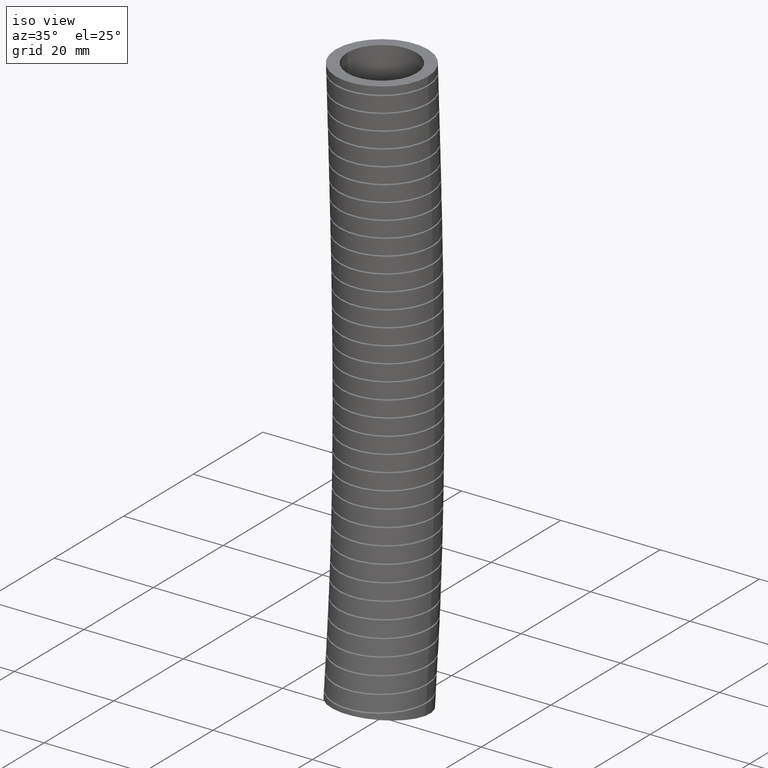
[diagram: clean part render]
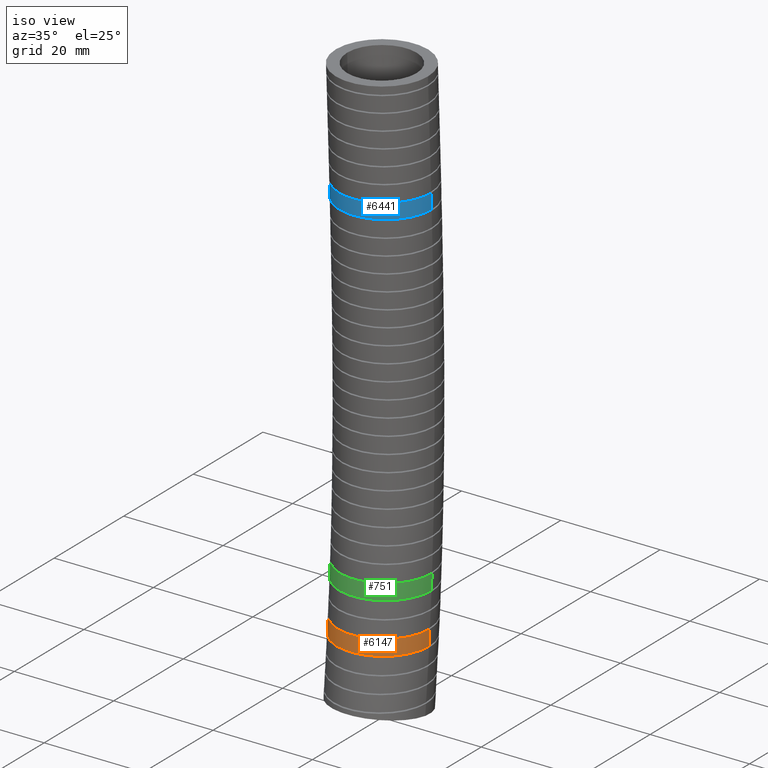
[diagram: same view with three faces highlighted in distinct colors, each labeled with its STEP entity id]
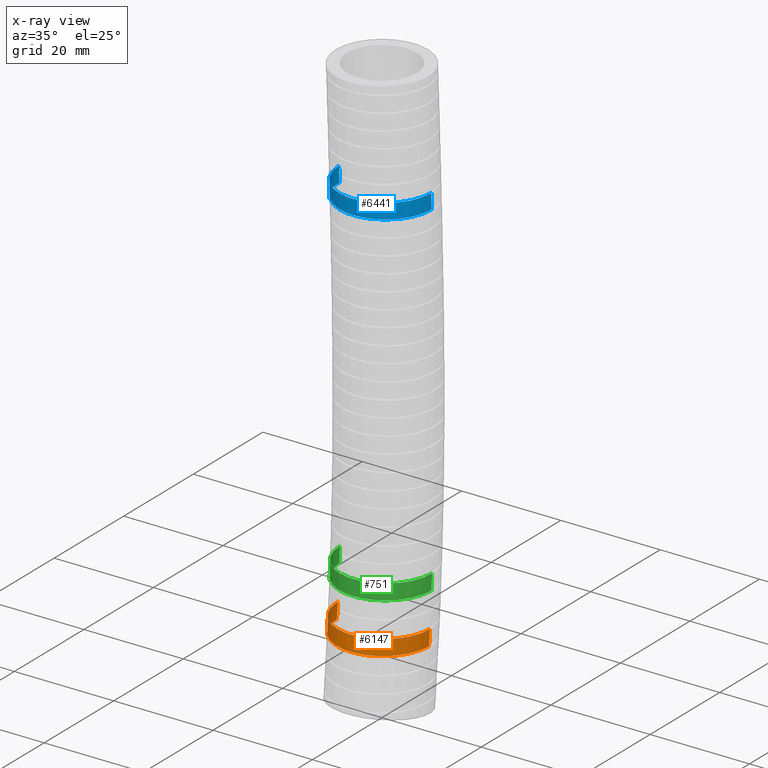
[diagram: x-ray of the same camera — body ghosted, the three highlighted faces saturated]
A machine part, iso view with three faces highlighted in distinct colors.
The next image is the same camera in x-ray (body ghosted, the three faces saturated) — at least one of them is partly hidden behind the body in this view.
Their STEP definitions:

[orange] entity #6147 — the highlighted face is a freeform B-spline surface patch.
#6115 = EDGE_LOOP ( 'NONE', ( #6137, #6139, #6136, #6132 ) ) ;
#6131 = EDGE_CURVE ( 'NONE', #6144, #6142, #7978, .T. ) ;
#6132 = ORIENTED_EDGE ( 'NONE', *, *, #6133, .F. ) ;
#6133 = EDGE_CURVE ( 'NONE', #6140, #6135, #8040, .T. ) ;
#6135 = VERTEX_POINT ( 'NONE', #8039 ) ;
#6136 = ORIENTED_EDGE ( 'NONE', *, *, #6138, .T. ) ;
#6137 = ORIENTED_EDGE ( 'NONE', *, *, #6143, .T. ) ;
#6138 = EDGE_CURVE ( 'NONE', #6142, #6135, #8032, .T. ) ;
#6139 = ORIENTED_EDGE ( 'NONE', *, *, #6131, .T. ) ;
#6140 = VERTEX_POINT ( 'NONE', #8033 ) ;
#6142 = VERTEX_POINT ( 'NONE', #8051 ) ;
#6143 = EDGE_CURVE ( 'NONE', #6140, #6144, #8129, .T. ) ;
#6144 = VERTEX_POINT ( 'NONE', #8128 ) ;
#6147 = ADVANCED_FACE ( 'NONE', ( #8151 ), #8185, .T. ) ;
#7923 = CARTESIAN_POINT ( 'NONE',  ( -0.3649999999999998800, 0.7763672281549830500, -3.781913183025811700 ) ) ;
#7925 = CARTESIAN_POINT ( 'NONE',  ( -0.3649999999999999400, 0.8301834959050966600, -2.210314633867584100 ) ) ;
#7926 = CARTESIAN_POINT ( 'NONE',  ( -0.3649999999999999400, 0.7690999251777161900, -0.8626484434652025300 ) ) ;
#7978 = B_SPLINE_CURVE_WITH_KNOTS ( 'NONE', 3,
 ( #8045, #8044, #8043, #8042, #8041 ),
 .UNSPECIFIED., .F., .F.,
 ( 4, 1, 4 ),
 ( 0.8677262134614567300, 0.8748558840421495300, 0.8939758704220260900 ),
 .UNSPECIFIED. ) ;
#8015 = CARTESIAN_POINT ( 'NONE',  ( -0.1617408732175062400, -0.3156233113611828200, -4.087119373197302800 ) ) ;
#8016 = CARTESIAN_POINT ( 'NONE',  ( -0.1831871242756609700, -0.3041237905556405900, -4.087119373197302800 ) ) ;
#8017 = CARTESIAN_POINT ( 'NONE',  ( -0.2228213214858662200, -0.2775409316055321200, -4.087119373197302800 ) ) ;
#8018 = CARTESIAN_POINT ( 'NONE',  ( -0.2412027265038865200, -0.2624216085068166200, -4.087119373197301900 ) ) ;
#8019 = CARTESIAN_POINT ( 'NONE',  ( -0.2665947652469278200, -0.2369670080412288600, -4.087119373197302800 ) ) ;
#8020 = CARTESIAN_POINT ( 'NONE',  ( -0.2747198171865297100, -0.2279751230850201900, -4.087119373197301000 ) ) ;
#8021 = CARTESIAN_POINT ( 'NONE',  ( -0.2898893809470717300, -0.2094254825065335900, -4.087119373197301000 ) ) ;
#8022 = CARTESIAN_POINT ( 'NONE',  ( -0.2969751636502768700, -0.1998329062391065200, -4.087119373197304600 ) ) ;
#8023 = CARTESIAN_POINT ( 'NONE',  ( -0.3167667045823543400, -0.1701217711008359800, -4.087119373197302800 ) ) ;
#8024 = CARTESIAN_POINT ( 'NONE',  ( -0.3280402213300371800, -0.1490324992681531500, -4.087119373197301000 ) ) ;
#8025 = CARTESIAN_POINT ( 'NONE',  ( -0.3464518926208468000, -0.1044613540471608100, -4.087119373197301000 ) ) ;
#8026 = CARTESIAN_POINT ( 'NONE',  ( -0.3533309524797101900, -0.08163236126938180900, -4.087119373197300100 ) ) ;
#8027 = CARTESIAN_POINT ( 'NONE',  ( -0.3602916336646771500, -0.04660463012052671500, -4.087119373197301000 ) ) ;
#8028 = CARTESIAN_POINT ( 'NONE',  ( -0.3620480852095620500, -0.03479704955800518700, -4.087119373197300100 ) ) ;
#8029 = CARTESIAN_POINT ( 'NONE',  ( -0.3644060016865112700, -0.01091214047444344700, -4.087119373197301900 ) ) ;
#8030 = CARTESIAN_POINT ( 'NONE',  ( -0.3649999999999999900, 0.001184282769159964300, -4.087119373197301000 ) ) ;
#8031 = CARTESIAN_POINT ( 'NONE',  ( -0.3650000000000000500, 0.01315168128347887900, -4.087119373197301000 ) ) ;
#8032 = B_SPLINE_CURVE_WITH_KNOTS ( 'NONE', 3,
 ( #8031, #8030, #8029, #8028, #8027, #8026, #8025, #8024, #8023, #8022, #8021, #8020, #8019, #8018, #8017, #8016, #8015, #8082, #8081, #8080, #8079, #8078, #8077, #8076, #8075, #8074, #8073, #8072, #8071, #8070, #8069, #8068, #8067, #8066, #8065, #8064, #8063, #8062, #8061, #8060, #8059, #8058, #8057, #8056, #8055, #8054, #8053 ),
 .UNSPECIFIED., .F., .F.,
 ( 4, 2, 2, 2, 2, 2, 2, 2, 2, 2, 2, 1, 2, 2, 2, 2, 2, 2, 2, 2, 2, 2, 2, 4 ),
 ( 0.02932350999176520900, 0.03023998982624896700, 0.03115646966073272100, 0.03298942932970023300, 0.03482238899866774200, 0.03573886883315149900, 0.03665534866763525700, 0.03848830833660276500, 0.04032126800557027400, 0.04215422767453778900, 0.04307070750902154000, 0.04398718734350529100, 0.04490366717798904800, 0.04582014701247280600, 0.04765310668144030800, 0.04856958651592406500, 0.04948606635040781600, 0.05131902601937532400, 0.05223550585385908200, 0.05315198568834284000, 0.05498494535731035500, 0.05681790502627786400, 0.05773438486076162800, 0.05865086469524537900 ),
 .UNSPECIFIED. ) ;
#8033 = CARTESIAN_POINT ( 'NONE',  ( 0.3649999999999999900, 0.02243958337531989900, -3.967509262061444300 ) ) ;
#8034 = CARTESIAN_POINT ( 'NONE',  ( 0.3649999999999999900, 0.01315168131459247500, -4.087119373005252000 ) ) ;
#8035 = CARTESIAN_POINT ( 'NONE',  ( 0.3649999999999999900, 0.01550379923908595100, -4.058082443948714000 ) ) ;
#8036 = CARTESIAN_POINT ( 'NONE',  ( 0.3649999999999999900, 0.01864319593787870300, -4.018214199344331700 ) ) ;
#8037 = CARTESIAN_POINT ( 'NONE',  ( 0.3649999999999999900, 0.02163706634788196300, -3.978339948709972900 ) ) ;
#8038 = CARTESIAN_POINT ( 'NONE',  ( 0.3649999999999999900, 0.02243958337531989900, -3.967509262061444300 ) ) ;
#8039 = CARTESIAN_POINT ( 'NONE',  ( 0.3649999999999999900, 0.01315168131459247500, -4.087119373005252000 ) ) ;
#8040 = B_SPLINE_CURVE_WITH_KNOTS ( 'NONE', 3,
 ( #8038, #8037, #8036, #8035, #8034 ),
 .UNSPECIFIED., .F., .F.,
 ( 4, 1, 4 ),
 ( 0.8677262134190943900, 0.8748558840421495300, 0.8939758703795985800 ),
 .UNSPECIFIED. ) ;
#8041 = CARTESIAN_POINT ( 'NONE',  ( -0.3650000000000000500, 0.01315168128347887900, -4.087119373197301000 ) ) ;
#8042 = CARTESIAN_POINT ( 'NONE',  ( -0.3649999999999999900, 0.01550379922893752200, -4.058082444077592200 ) ) ;
#8043 = CARTESIAN_POINT ( 'NONE',  ( -0.3649999999999999900, 0.01864319592797328600, -4.018214199473121100 ) ) ;
#8044 = CARTESIAN_POINT ( 'NONE',  ( -0.3649999999999999900, 0.02163706633821883100, -3.978339948838672600 ) ) ;
#8045 = CARTESIAN_POINT ( 'NONE',  ( -0.3649999999999999900, 0.02243958334686557000, -3.967509262253454200 ) ) ;
#8051 = CARTESIAN_POINT ( 'NONE',  ( -0.3650000000000000500, 0.01315168128347887900, -4.087119373197301000 ) ) ;
#8053 = CARTESIAN_POINT ( 'NONE',  ( 0.3649999999999999900, 0.01315168131459247500, -4.087119373005252000 ) ) ;
#8054 = CARTESIAN_POINT ( 'NONE',  ( 0.3649999999999999900, 0.001082752167968604500, -4.087119373005252000 ) ) ;
#8055 = CARTESIAN_POINT ( 'NONE',  ( 0.3643998008095759000, -0.01099425686668248900, -4.087119373197296600 ) ) ;
#8056 = CARTESIAN_POINT ( 'NONE',  ( 0.3620428462776482700, -0.03483072062553978200, -4.087119373197296600 ) ) ;
#8057 = CARTESIAN_POINT ( 'NONE',  ( 0.3602882235100769400, -0.04662439098535629800, -4.087119373197303700 ) ) ;
#8058 = CARTESIAN_POINT ( 'NONE',  ( 0.3533286401720897600, -0.08163879182306250900, -4.087119373197302800 ) ) ;
#8059 = CARTESIAN_POINT ( 'NONE',  ( 0.3464138624654762300, -0.1045704718090343800, -4.087119373197302800 ) ) ;
#8060 = CARTESIAN_POINT ( 'NONE',  ( 0.3280025052856532200, -0.1491066782820089600, -4.087119373197302800 ) ) ;
#8061 = CARTESIAN_POINT ( 'NONE',  ( 0.3167635655355515200, -0.1701291182734404600, -4.087119373197299200 ) ) ;
#8062 = CARTESIAN_POINT ( 'NONE',  ( 0.2969580611764466900, -0.1998572612607742700, -4.087119373197298300 ) ) ;
#8063 = CARTESIAN_POINT ( 'NONE',  ( 0.2898614562622361400, -0.2094635247942865100, -4.087119373197299200 ) ) ;
#8064 = CARTESIAN_POINT ( 'NONE',  ( 0.2746523681619926200, -0.2280536811351860400, -4.087119373197298300 ) ) ;
#8065 = CARTESIAN_POINT ( 'NONE',  ( 0.2665346444872449500, -0.2370302062789639600, -4.087119373197298300 ) ) ;
#8066 = CARTESIAN_POINT ( 'NONE',  ( 0.2411886872538565900, -0.2624298003029826900, -4.087119373197298300 ) ) ;
#8067 = CARTESIAN_POINT ( 'NONE',  ( 0.2228127136834689200, -0.2775509216124849000, -4.087119373197302800 ) ) ;
#8068 = CARTESIAN_POINT ( 'NONE',  ( 0.1930332887395946600, -0.2975178022032650700, -4.087119373197302800 ) ) ;
#8069 = CARTESIAN_POINT ( 'NONE',  ( 0.1826787951722896600, -0.3037465838967980900, -4.087119373197298300 ) ) ;
#8070 = CARTESIAN_POINT ( 'NONE',  ( 0.1614823731041883900, -0.3151030888817274400, -4.087119373197298300 ) ) ;
#8071 = CARTESIAN_POINT ( 'NONE',  ( 0.1506800674731778000, -0.3202179175179937200, -4.087119373197303700 ) ) ;
#8072 = CARTESIAN_POINT ( 'NONE',  ( 0.1176775753753281200, -0.3339182576064065300, -4.087119373197304600 ) ) ;
#8073 = CARTESIAN_POINT ( 'NONE',  ( 0.09488755184599673200, -0.3408754639626394000, -4.087119373197302800 ) ) ;
#8074 = CARTESIAN_POINT ( 'NONE',  ( 0.05948187664643488800, -0.3479415731087019400, -4.087119373197302800 ) ) ;
#8075 = CARTESIAN_POINT ( 'NONE',  ( 0.04754813807260795100, -0.3497105982047191100, -4.087119373197302800 ) ) ;
#8076 = CARTESIAN_POINT ( 'NONE',  ( 0.02377449821409572200, -0.3520497013830436500, -4.087119373197303700 ) ) ;
#8077 = CARTESIAN_POINT ( 'NONE',  ( -1.107502952746316500E-005, -0.3532120166515401700, -4.087119373197301000 ) ) ;
#8078 = CARTESIAN_POINT ( 'NONE',  ( -0.02382024384211470600, -0.3520475000927281200, -4.087119373197302800 ) ) ;
#8079 = CARTESIAN_POINT ( 'NONE',  ( -0.04764141792066452900, -0.3496991072317668400, -4.087119373197302800 ) ) ;
#8080 = CARTESIAN_POINT ( 'NONE',  ( -0.05962263112552788900, -0.3479170834695793400, -4.087119373197301900 ) ) ;
#8081 = CARTESIAN_POINT ( 'NONE',  ( -0.09492289961350880400, -0.3408611576589897200, -4.087119373197301000 ) ) ;
#8082 = CARTESIAN_POINT ( 'NONE',  ( -0.1176939126144220200, -0.3339143991098371700, -4.087119373197302800 ) ) ;
#8083 = CARTESIAN_POINT ( 'NONE',  ( -0.3649999999999999900, 0.02243958334686557000, -3.967509262253454200 ) ) ;
#8084 = CARTESIAN_POINT ( 'NONE',  ( -0.3650000000000000500, -0.001485910795141258200, -3.967509262253454700 ) ) ;
#8085 = CARTESIAN_POINT ( 'NONE',  ( -0.3626765455430618300, -0.02516022704665146800, -3.967509262253453400 ) ) ;
#8086 = CARTESIAN_POINT ( 'NONE',  ( -0.3557264755463842600, -0.06029712841077555800, -3.967509262253453400 ) ) ;
#8087 = CARTESIAN_POINT ( 'NONE',  ( -0.3528124501964738400, -0.07199680390650672900, -3.967509262253450700 ) ) ;
#8088 = CARTESIAN_POINT ( 'NONE',  ( -0.3458472654684431300, -0.09502799798352958000, -3.967509262253449400 ) ) ;
#8089 = CARTESIAN_POINT ( 'NONE',  ( -0.3418243098427030100, -0.1062861003540955800, -3.967509262253453400 ) ) ;
#8090 = CARTESIAN_POINT ( 'NONE',  ( -0.3281821007054568900, -0.1393106761803718500, -3.967509262253454700 ) ) ;
#8091 = CARTESIAN_POINT ( 'NONE',  ( -0.3170044891574855800, -0.1603345586541239700, -3.967509262253454700 ) ) ;
#8092 = CARTESIAN_POINT ( 'NONE',  ( -0.2970280301259776200, -0.1903407287360946700, -3.967509262253453400 ) ) ;
#8093 = CARTESIAN_POINT ( 'NONE',  ( -0.2898418797972496800, -0.2000548836798340400, -3.967509262253452900 ) ) ;
#8094 = CARTESIAN_POINT ( 'NONE',  ( -0.2747054790361358500, -0.2185470449185316100, -3.967509262253452500 ) ) ;
#8095 = CARTESIAN_POINT ( 'NONE',  ( -0.2587354194550471900, -0.2362119291484534300, -3.967509262253452500 ) ) ;
#8096 = CARTESIAN_POINT ( 'NONE',  ( -0.2411200543445281800, -0.2522441029646017600, -3.967509262253453400 ) ) ;
#8097 = CARTESIAN_POINT ( 'NONE',  ( -0.2226692092581972200, -0.2674471925574188900, -3.967509262253452900 ) ) ;
#8098 = CARTESIAN_POINT ( 'NONE',  ( -0.2129690166951137000, -0.2746703354542592800, -3.967509262253454700 ) ) ;
#8099 = CARTESIAN_POINT ( 'NONE',  ( -0.1830435126803871000, -0.2947272006410603400, -3.967509262253452900 ) ) ;
#8100 = CARTESIAN_POINT ( 'NONE',  ( -0.1620573206161014000, -0.3059664288157737400, -3.967509262253452500 ) ) ;
#8101 = CARTESIAN_POINT ( 'NONE',  ( -0.1180601662086936400, -0.3242774710146240600, -3.967509262253453400 ) ) ;
#8102 = CARTESIAN_POINT ( 'NONE',  ( -0.09479862161500977900, -0.3313704106636249900, -3.967509262253452900 ) ) ;
#8103 = CARTESIAN_POINT ( 'NONE',  ( -0.04798787793612179600, -0.3407216475563977200, -3.967509262253454200 ) ) ;
#8104 = CARTESIAN_POINT ( 'NONE',  ( -0.02431517964746054600, -0.3430828342167252000, -3.967509262253452500 ) ) ;
#8105 = CARTESIAN_POINT ( 'NONE',  ( 0.01159871692494670100, -0.3431195524388971400, -3.967509262253452500 ) ) ;
#8106 = CARTESIAN_POINT ( 'NONE',  ( 0.02369788016563068000, -0.3425336486784407700, -3.967509262253450200 ) ) ;
#8107 = CARTESIAN_POINT ( 'NONE',  ( 0.04755580918521059400, -0.3401900375235991600, -3.967509262253450200 ) ) ;
#8108 = CARTESIAN_POINT ( 'NONE',  ( 0.05935350693318411400, -0.3384384002944975700, -3.967509262253452000 ) ) ;
#8109 = CARTESIAN_POINT ( 'NONE',  ( 0.09436155467311664600, -0.3314826652802494400, -3.967509262253452500 ) ) ;
#8110 = CARTESIAN_POINT ( 'NONE',  ( 0.1171996310214901600, -0.3245907844439759900, -3.967509262253453400 ) ) ;
#8111 = CARTESIAN_POINT ( 'NONE',  ( 0.1617767985313886000, -0.3061268751276236500, -3.967509262253454200 ) ) ;
#8112 = CARTESIAN_POINT ( 'NONE',  ( 0.1827873701017185800, -0.2948586572645955400, -3.967509262253450700 ) ) ;
#8113 = CARTESIAN_POINT ( 'NONE',  ( 0.2124650618052960300, -0.2750275719445304800, -3.967509262253450200 ) ) ;
#8114 = CARTESIAN_POINT ( 'NONE',  ( 0.2220489845426173700, -0.2679254506613253900, -3.967509262253454200 ) ) ;
#8115 = CARTESIAN_POINT ( 'NONE',  ( 0.2405855280185553700, -0.2527153514633514500, -3.967509262253454700 ) ) ;
#8116 = CARTESIAN_POINT ( 'NONE',  ( 0.2495573713933254800, -0.2445790290307347200, -3.967509262253454200 ) ) ;
#8117 = CARTESIAN_POINT ( 'NONE',  ( 0.2749347101359339600, -0.2191779804189381600, -3.967509262253454200 ) ) ;
#8118 = CARTESIAN_POINT ( 'NONE',  ( 0.2900183957314422200, -0.2007831143709999400, -3.967509262253454700 ) ) ;
#8119 = CARTESIAN_POINT ( 'NONE',  ( 0.3165513165902419400, -0.1610992907674687300, -3.967509262253454700 ) ) ;
#8120 = CARTESIAN_POINT ( 'NONE',  ( 0.3280138771975190700, -0.1396533433896882100, -3.967509262253454700 ) ) ;
#8121 = CARTESIAN_POINT ( 'NONE',  ( 0.3462528122656919300, -0.09562929144354150000, -3.967509262253453400 ) ) ;
#8122 = CARTESIAN_POINT ( 'NONE',  ( 0.3531916030798257800, -0.07285835205842643200, -3.967509262253452000 ) ) ;
#8123 = CARTESIAN_POINT ( 'NONE',  ( 0.3602524120222780300, -0.03753699748985663700, -3.967509262253452000 ) ) ;
#8124 = CARTESIAN_POINT ( 'NONE',  ( 0.3620368236576664300, -0.02557139723267076700, -3.967509262253455100 ) ) ;
#8125 = CARTESIAN_POINT ( 'NONE',  ( 0.3644049917973240500, -0.001639763303863270500, -3.967509262253454700 ) ) ;
#8126 = CARTESIAN_POINT ( 'NONE',  ( 0.3649999999999999400, 0.01037512651330590300, -3.967509262061443800 ) ) ;
#8127 = CARTESIAN_POINT ( 'NONE',  ( 0.3649999999999999900, 0.02243958337531989900, -3.967509262061444300 ) ) ;
#8128 = CARTESIAN_POINT ( 'NONE',  ( -0.3649999999999999900, 0.02243958334686557000, -3.967509262253454200 ) ) ;
#8129 = B_SPLINE_CURVE_WITH_KNOTS ( 'NONE', 3,
 ( #8127, #8126, #8125, #8124, #8123, #8122, #8121, #8120, #8119, #8118, #8117, #8116, #8115, #8114, #8113, #8112, #8111, #8110, #8109, #8108, #8107, #8106, #8105, #8104, #8103, #8102, #8101, #8100, #8099, #8098, #8097, #8096, #8095, #8094, #8093, #8092, #8091, #8090, #8089, #8088, #8087, #8086, #8085, #8084, #8083 ),
 .UNSPECIFIED., .F., .F.,
 ( 4, 2, 2, 2, 2, 2, 2, 2, 2, 2, 2, 2, 2, 2, 2, 2, 1, 2, 2, 2, 2, 2, 4 ),
 ( 0.0000000000000000000, 0.0009161382506049055800, 0.001832276501209811200, 0.003664553002419624000, 0.005496829503629436700, 0.007329106004839251600, 0.008245244255444157700, 0.009161382506049062900, 0.01099365900725887500, 0.01282593550846868900, 0.01374207375907359300, 0.01465821200967850000, 0.01649048851088831200, 0.01832276501209812200, 0.02015504151330792900, 0.02107117976391283800, 0.02198731801451774000, 0.02290345626512264900, 0.02381959451572755700, 0.02565187101693737500, 0.02656800926754228400, 0.02748414751814718500, 0.02931642401935699900 ),
 .UNSPECIFIED. ) ;
#8151 = FACE_OUTER_BOUND ( 'NONE', #6115, .T. ) ;
#8152 = CARTESIAN_POINT ( 'NONE',  ( -0.3649999999999999400, 0.7299999999999998700, 0.0000000000000000000 ) ) ;
#8154 = CARTESIAN_POINT ( 'NONE',  ( -0.3649999999999999900, -0.02999999999999997100, -4.570000000000000300 ) ) ;
#8155 = CARTESIAN_POINT ( 'NONE',  ( -0.3649999999999999900, -0.01223079473036812700, -4.380045502980629600 ) ) ;
#8156 = CARTESIAN_POINT ( 'NONE',  ( -0.3649999999999999900, 0.05024477800268267700, -3.712175679067584200 ) ) ;
#8157 = CARTESIAN_POINT ( 'NONE',  ( -0.3649999999999999400, 0.09930665703747128300, -2.190454472439184600 ) ) ;
#8158 = CARTESIAN_POINT ( 'NONE',  ( -0.3649999999999999900, 0.03875770978777290400, -0.8548973581307141000 ) ) ;
#8159 = CARTESIAN_POINT ( 'NONE',  ( -0.3649999999999999900, 4.469960816887839200E-017, 0.0000000000000000000 ) ) ;
#8160 = CARTESIAN_POINT ( 'NONE',  ( -0.3650000000000001000, -0.7530017825107172500, -4.469161403786418200 ) ) ;
#8161 = CARTESIAN_POINT ( 'NONE',  ( -0.3650000000000001000, -0.7359236101691065700, -4.286093855751774500 ) ) ;
#8162 = CARTESIAN_POINT ( 'NONE',  ( -0.3650000000000001000, -0.6758776721496178000, -3.642438175109354900 ) ) ;
#8163 = CARTESIAN_POINT ( 'NONE',  ( -0.3650000000000001000, -0.6315701818301539000, -2.170594311010786800 ) ) ;
#8164 = CARTESIAN_POINT ( 'NONE',  ( -0.3650000000000001000, -0.6915845056021706600, -0.8471462727962260100 ) ) ;
#8165 = CARTESIAN_POINT ( 'NONE',  ( -0.3650000000000001000, -0.7299999999999998700, 0.0000000000000000000 ) ) ;
#8166 = CARTESIAN_POINT ( 'NONE',  ( 0.3649999999999999400, -0.7530017825107172500, -4.469161403786418200 ) ) ;
#8167 = CARTESIAN_POINT ( 'NONE',  ( 0.3649999999999999400, -0.7359236101691065700, -4.286093855751774500 ) ) ;
#8168 = CARTESIAN_POINT ( 'NONE',  ( 0.3649999999999999400, -0.6758776721496178000, -3.642438175109354900 ) ) ;
#8169 = CARTESIAN_POINT ( 'NONE',  ( 0.3649999999999999400, -0.6315701818301539000, -2.170594311010786800 ) ) ;
#8170 = CARTESIAN_POINT ( 'NONE',  ( 0.3649999999999999400, -0.6915845056021706600, -0.8471462727962260100 ) ) ;
#8171 = CARTESIAN_POINT ( 'NONE',  ( 0.3649999999999999400, -0.7299999999999998700, 0.0000000000000000000 ) ) ;
#8172 = CARTESIAN_POINT ( 'NONE',  ( 0.3649999999999999900, -0.03000000000000001300, -4.570000000000000300 ) ) ;
#8173 = CARTESIAN_POINT ( 'NONE',  ( 0.3649999999999999900, -0.01223079473036816800, -4.380045502980629600 ) ) ;
#8174 = CARTESIAN_POINT ( 'NONE',  ( 0.3649999999999999900, 0.05024477800268264300, -3.712175679067584200 ) ) ;
#8175 = CARTESIAN_POINT ( 'NONE',  ( 0.3649999999999999400, 0.09930665703747126900, -2.190454472439184600 ) ) ;
#8176 = CARTESIAN_POINT ( 'NONE',  ( 0.3649999999999999900, 0.03875770978777286900, -0.8548973581307141000 ) ) ;
#8177 = CARTESIAN_POINT ( 'NONE',  ( 0.3649999999999999900, 0.0000000000000000000, 0.0000000000000000000 ) ) ;
#8185 =( BOUNDED_SURFACE ( )  B_SPLINE_SURFACE ( 3, 3, ( 
 ( #8177, #8176, #8175, #8174, #8173, #8172 ),
 ( #8171, #8170, #8169, #8168, #8167, #8166 ),
 ( #8165, #8164, #8163, #8162, #8161, #8160 ),
 ( #8159, #8158, #8157, #8156, #8155, #8154 ),
 ( #8152, #7926, #7925, #7923, #8215, #8214 ),
 ( #8213, #8212, #8211, #8210, #8209, #8208 ),
 ( #8207, #8206, #8205, #8204, #8203, #8202 ) ),
 .UNSPECIFIED., .F., .F., .F. ) 
 B_SPLINE_SURFACE_WITH_KNOTS ( ( 4, 3, 4 ),
 ( 4, 1, 1, 4 ),
 ( 0.0000000000000000000, 0.5000000000000000000, 1.000000000000000000 ),
 ( 0.0000000000000000000, 0.5600000000000000500, 0.8748558840421495300, 1.000000000000000000 ),
 .UNSPECIFIED. ) 
 GEOMETRIC_REPRESENTATION_ITEM ( )  RATIONAL_B_SPLINE_SURFACE ( (
 ( 1.000000000000000000, 1.000000000000000000, 1.000000000000000000, 1.000000000000000000, 1.000000000000000000, 1.000000000000000000),
 ( 0.3333333333333333100, 0.3333333333333333100, 0.3333333333333333100, 0.3333333333333333100, 0.3333333333333333100, 0.3333333333333333100),
 ( 0.3333333333333333100, 0.3333333333333333100, 0.3333333333333333100, 0.3333333333333333100, 0.3333333333333333100, 0.3333333333333333100),
 ( 1.000000000000000000, 1.000000000000000000, 1.000000000000000000, 1.000000000000000000, 1.000000000000000000, 1.000000000000000000),
 ( 0.3333333333333333100, 0.3333333333333333100, 0.3333333333333333100, 0.3333333333333333100, 0.3333333333333333100, 0.3333333333333333100),
 ( 0.3333333333333333100, 0.3333333333333333100, 0.3333333333333333100, 0.3333333333333333100, 0.3333333333333333100, 0.3333333333333333100),
 ( 1.000000000000000000, 1.000000000000000000, 1.000000000000000000, 1.000000000000000000, 1.000000000000000000, 1.000000000000000000) ) ) 
 REPRESENTATION_ITEM ( '' )  SURFACE ( )  );
#8202 = CARTESIAN_POINT ( 'NONE',  ( 0.3649999999999999900, -0.03000000000000001300, -4.570000000000000300 ) ) ;
#8203 = CARTESIAN_POINT ( 'NONE',  ( 0.3649999999999999900, -0.01223079473036816800, -4.380045502980629600 ) ) ;
#8204 = CARTESIAN_POINT ( 'NONE',  ( 0.3649999999999999900, 0.05024477800268264300, -3.712175679067584200 ) ) ;
#8205 = CARTESIAN_POINT ( 'NONE',  ( 0.3649999999999999400, 0.09930665703747126900, -2.190454472439184600 ) ) ;
#8206 = CARTESIAN_POINT ( 'NONE',  ( 0.3649999999999999900, 0.03875770978777286900, -0.8548973581307141000 ) ) ;
#8207 = CARTESIAN_POINT ( 'NONE',  ( 0.3649999999999999900, 0.0000000000000000000, 0.0000000000000000000 ) ) ;
#8208 = CARTESIAN_POINT ( 'NONE',  ( 0.3649999999999999400, 0.6930017825107170900, -4.670838596213580600 ) ) ;
#8209 = CARTESIAN_POINT ( 'NONE',  ( 0.3649999999999999400, 0.7114620207083701700, -4.473997150209484600 ) ) ;
#8210 = CARTESIAN_POINT ( 'NONE',  ( 0.3649999999999999400, 0.7763672281549830500, -3.781913183025811700 ) ) ;
#8211 = CARTESIAN_POINT ( 'NONE',  ( 0.3649999999999999400, 0.8301834959050966600, -2.210314633867584100 ) ) ;
#8212 = CARTESIAN_POINT ( 'NONE',  ( 0.3649999999999999400, 0.7690999251777161900, -0.8626484434652025300 ) ) ;
#8213 = CARTESIAN_POINT ( 'NONE',  ( 0.3649999999999999400, 0.7299999999999998700, 0.0000000000000000000 ) ) ;
#8214 = CARTESIAN_POINT ( 'NONE',  ( -0.3649999999999999400, 0.6930017825107170900, -4.670838596213580600 ) ) ;
#8215 = CARTESIAN_POINT ( 'NONE',  ( -0.3649999999999998800, 0.7114620207083701700, -4.473997150209484600 ) ) ;

[blue] entity #6441 — the highlighted face is a freeform B-spline surface patch.
#6420 = EDGE_CURVE ( 'NONE', #6436, #6422, #10579, .T. ) ;
#6422 = VERTEX_POINT ( 'NONE', #10695 ) ;
#6423 = ORIENTED_EDGE ( 'NONE', *, *, #6420, .F. ) ;
#6424 = VERTEX_POINT ( 'NONE', #10694 ) ;
#6425 = EDGE_CURVE ( 'NONE', #6424, #6422, #10693, .T. ) ;
#6426 = ORIENTED_EDGE ( 'NONE', *, *, #6425, .T. ) ;
#6427 = ORIENTED_EDGE ( 'NONE', *, *, #6428, .T. ) ;
#6428 = EDGE_CURVE ( 'NONE', #6435, #6424, #10708, .T. ) ;
#6432 = EDGE_CURVE ( 'NONE', #6436, #6435, #10702, .T. ) ;
#6434 = EDGE_LOOP ( 'NONE', ( #6442, #6427, #6426, #6423 ) ) ;
#6435 = VERTEX_POINT ( 'NONE', #10703 ) ;
#6436 = VERTEX_POINT ( 'NONE', #10701 ) ;
#6441 = ADVANCED_FACE ( 'NONE', ( #10819 ), #10908, .T. ) ;
#6442 = ORIENTED_EDGE ( 'NONE', *, *, #6432, .T. ) ;
#10579 = B_SPLINE_CURVE_WITH_KNOTS ( 'NONE', 3,
 ( #10592, #10591, #10590, #10589 ),
 .UNSPECIFIED., .F., .F.,
 ( 4, 4 ),
 ( 0.1854508205231403000, 0.2116378623535460600 ),
 .UNSPECIFIED. ) ;
#10589 = CARTESIAN_POINT ( 'NONE',  ( 0.3649999999999999400, 0.04165406310332955800, -0.9691661757674864300 ) ) ;
#10590 = CARTESIAN_POINT ( 'NONE',  ( 0.3649999999999999900, 0.04012481211533764500, -0.9292006604956638500 ) ) ;
#10591 = CARTESIAN_POINT ( 'NONE',  ( 0.3649999999999999900, 0.03856052436861104300, -0.8892336992182770000 ) ) ;
#10592 = CARTESIAN_POINT ( 'NONE',  ( 0.3649999999999999900, 0.03696553514161293700, -0.8492654708570360800 ) ) ;
#10612 = CARTESIAN_POINT ( 'NONE',  ( -0.3649999999999999400, 0.6930017825107170900, -4.670838596213580600 ) ) ;
#10613 = CARTESIAN_POINT ( 'NONE',  ( -0.3649999999999998800, 0.7114620207083701700, -4.473997150209484600 ) ) ;
#10614 = CARTESIAN_POINT ( 'NONE',  ( -0.3649999999999998800, 0.7763672281549830500, -3.781913183025811700 ) ) ;
#10615 = CARTESIAN_POINT ( 'NONE',  ( -0.3649999999999999400, 0.8301834959050966600, -2.210314633867584100 ) ) ;
#10616 = CARTESIAN_POINT ( 'NONE',  ( -0.3649999999999999400, 0.7690999251777161900, -0.8626484434652025300 ) ) ;
#10617 = CARTESIAN_POINT ( 'NONE',  ( -0.3649999999999999400, 0.7299999999999998700, 0.0000000000000000000 ) ) ;
#10618 = CARTESIAN_POINT ( 'NONE',  ( -0.3649999999999999900, -0.02999999999999997100, -4.570000000000000300 ) ) ;
#10620 = CARTESIAN_POINT ( 'NONE',  ( -0.3649999999999999900, -0.01223079473036812700, -4.380045502980629600 ) ) ;
#10621 = CARTESIAN_POINT ( 'NONE',  ( -0.3649999999999999900, 0.05024477800268267700, -3.712175679067584200 ) ) ;
#10622 = CARTESIAN_POINT ( 'NONE',  ( -0.3649999999999999400, 0.09930665703747128300, -2.190454472439184600 ) ) ;
#10666 = CARTESIAN_POINT ( 'NONE',  ( 0.09479882555116507500, -0.3116001830833140500, -0.9691661757673855100 ) ) ;
#10667 = CARTESIAN_POINT ( 'NONE',  ( 0.05943697941927935500, -0.3186349800532132200, -0.9691661757673856200 ) ) ;
#10668 = CARTESIAN_POINT ( 'NONE',  ( 0.04751121020988893800, -0.3203974464599319000, -0.9691661757673857300 ) ) ;
#10669 = CARTESIAN_POINT ( 'NONE',  ( 0.02376032937729465700, -0.3227271696324986400, -0.9691661757673855100 ) ) ;
#10670 = CARTESIAN_POINT ( 'NONE',  ( -2.386481711777797900E-007, -0.3238849153302132400, -0.9691661757673856200 ) ) ;
#10671 = CARTESIAN_POINT ( 'NONE',  ( -0.02377995108481280700, -0.3227265288976044500, -0.9691661757673856200 ) ) ;
#10672 = CARTESIAN_POINT ( 'NONE',  ( -0.04756939794714228100, -0.3203904506624061800, -0.9691661757673854000 ) ) ;
#10673 = CARTESIAN_POINT ( 'NONE',  ( -0.05953453666574969700, -0.3186179277435475800, -0.9691661757673854000 ) ) ;
#10674 = CARTESIAN_POINT ( 'NONE',  ( -0.09481126933699114700, -0.3115929757298580600, -0.9691661757673854000 ) ) ;
#10675 = CARTESIAN_POINT ( 'NONE',  ( -0.1175661283911370200, -0.3046754997204300100, -0.9691661757673857300 ) ) ;
#10676 = CARTESIAN_POINT ( 'NONE',  ( -0.1615806938881249300, -0.2864623101145867800, -0.9691661757673860600 ) ) ;
#10677 = CARTESIAN_POINT ( 'NONE',  ( -0.1830181086893349400, -0.2750095046904302800, -0.9691661757673851700 ) ) ;
#10678 = CARTESIAN_POINT ( 'NONE',  ( -0.2226598429271046400, -0.2485141330929721600, -0.9691661757673855100 ) ) ;
#10679 = CARTESIAN_POINT ( 'NONE',  ( -0.2410463631424660800, -0.2334425793074736700, -0.9691661757673855100 ) ) ;
#10680 = CARTESIAN_POINT ( 'NONE',  ( -0.2664481744204920100, -0.2080658153717382900, -0.9691661757673857300 ) ) ;
#10681 = CARTESIAN_POINT ( 'NONE',  ( -0.2745797933289418300, -0.1990981109354051400, -0.9691661757673860600 ) ) ;
#10682 = CARTESIAN_POINT ( 'NONE',  ( -0.2897674156882493200, -0.1805899393829889000, -0.9691661757673858400 ) ) ;
#10683 = CARTESIAN_POINT ( 'NONE',  ( -0.2968620572670611600, -0.1710179778796053200, -0.9691661757673856200 ) ) ;
#10684 = CARTESIAN_POINT ( 'NONE',  ( -0.3166794923438192600, -0.1413682194593046700, -0.9691661757673855100 ) ) ;
#10685 = CARTESIAN_POINT ( 'NONE',  ( -0.3279666697376598100, -0.1203261063126542500, -0.9691661757673855100 ) ) ;
#10686 = CARTESIAN_POINT ( 'NONE',  ( -0.3464139582246130200, -0.07581845309012781600, -0.9691661757673855100 ) ) ;
#10687 = CARTESIAN_POINT ( 'NONE',  ( -0.3533067529091963300, -0.05301963523450003300, -0.9691661757673849500 ) ) ;
#10688 = CARTESIAN_POINT ( 'NONE',  ( -0.3602816926704864300, -0.01803479053246246800, -0.9691661757673851700 ) ) ;
#10689 = CARTESIAN_POINT ( 'NONE',  ( -0.3620418265136944900, -0.006241105260564496500, -0.9691661757673864000 ) ) ;
#10690 = CARTESIAN_POINT ( 'NONE',  ( -0.3644047422064778900, 0.01761687335434179000, -0.9691661757673862800 ) ) ;
#10691 = CARTESIAN_POINT ( 'NONE',  ( -0.3649999999999999900, 0.02970015044427057300, -0.9691661757673860600 ) ) ;
#10692 = CARTESIAN_POINT ( 'NONE',  ( -0.3650000000000000500, 0.04165406310332188400, -0.9691661757673858400 ) ) ;
#10693 = B_SPLINE_CURVE_WITH_KNOTS ( 'NONE', 3,
 ( #10692, #10691, #10690, #10689, #10688, #10687, #10686, #10685, #10684, #10683, #10682, #10681, #10680, #10679, #10678, #10677, #10676, #10675, #10674, #10673, #10672, #10671, #10670, #10669, #10668, #10667, #10666, #10728, #10727, #10726, #10725, #10724, #10723, #10722, #10721, #10720, #10719, #10718, #10717, #10716, #10715, #10714, #10713, #10712, #10711, #10710, #10709 ),
 .UNSPECIFIED., .F., .F.,
 ( 4, 2, 2, 2, 2, 2, 2, 2, 2, 2, 2, 1, 2, 2, 2, 2, 2, 2, 2, 2, 2, 2, 2, 4 ),
 ( 0.02929370713441299300, 0.03020918625603870300, 0.03112466537766441600, 0.03295562362091584300, 0.03478658186416726300, 0.03570206098579297600, 0.03661754010741868900, 0.03844849835067011600, 0.04027945659392154200, 0.04211041483717296900, 0.04302589395879867500, 0.04394137308042439500, 0.04485685220205010100, 0.04577233132367581500, 0.04760328956692724100, 0.04851876868855295500, 0.04943424781017866100, 0.05126520605343008700, 0.05218068517505580100, 0.05309616429668151400, 0.05492712253993294000, 0.05675808078318436700, 0.05767355990481007300, 0.05858903902643578700 ),
 .UNSPECIFIED. ) ;
#10694 = CARTESIAN_POINT ( 'NONE',  ( -0.3650000000000000500, 0.04165406310332188400, -0.9691661757673858400 ) ) ;
#10695 = CARTESIAN_POINT ( 'NONE',  ( 0.3649999999999999400, 0.04165406310332955800, -0.9691661757674864300 ) ) ;
#10696 = CARTESIAN_POINT ( 'NONE',  ( 0.3556779071758106600, -0.04585107934648859800, -0.8492654708569433700 ) ) ;
#10697 = CARTESIAN_POINT ( 'NONE',  ( 0.3626331740602545800, -0.01086236290795302600, -0.8492654708569434800 ) ) ;
#10698 = CARTESIAN_POINT ( 'NONE',  ( 0.3650000000000000500, 0.01285004449338689900, -0.8492654708570359600 ) ) ;
#10699 = CARTESIAN_POINT ( 'NONE',  ( 0.3649999999999999900, 0.03696553514161293700, -0.8492654708570360800 ) ) ;
#10701 = CARTESIAN_POINT ( 'NONE',  ( 0.3649999999999999900, 0.03696553514161293700, -0.8492654708570360800 ) ) ;
#10702 = B_SPLINE_CURVE_WITH_KNOTS ( 'NONE', 3,
 ( #10699, #10698, #10697, #10696, #10780, #10779, #10778, #10777, #10776, #10775, #10774, #10773, #10772, #10771, #10770, #10769, #10768, #10767, #10766, #10765, #10764, #10763, #10762, #10761, #10760, #10759, #10758, #10757, #10756, #10755, #10754, #10753, #10752, #10751, #10750, #10749, #10748, #10747, #10746, #10745, #10744, #10743, #10742, #10741, #10740 ),
 .UNSPECIFIED., .F., .F.,
 ( 4, 2, 2, 2, 2, 2, 2, 2, 1, 2, 2, 2, 2, 2, 2, 2, 2, 2, 2, 2, 2, 2, 4 ),
 ( 0.0000000000000000000, 0.001811517596224212000, 0.002717276394336318200, 0.003623035192448425400, 0.005434552788672638100, 0.007246070384896850800, 0.009057587981121063500, 0.009963346779233167200, 0.01086910557734527300, 0.01177486437545737600, 0.01268062317356948000, 0.01449214076979368900, 0.01539789956790579500, 0.01630365836601790200, 0.01811517596224211000, 0.01902093476035421700, 0.01992669355846632400, 0.02173821115469053200, 0.02354972875091473900, 0.02445548754902684300, 0.02536124634713895000, 0.02717276394336316800, 0.02898428153958737900 ),
 .UNSPECIFIED. ) ;
#10703 = CARTESIAN_POINT ( 'NONE',  ( -0.3649999999999999400, 0.03696553514160556100, -0.8492654708569427100 ) ) ;
#10704 = CARTESIAN_POINT ( 'NONE',  ( -0.3650000000000000500, 0.04165406310332188400, -0.9691661757673858400 ) ) ;
#10705 = CARTESIAN_POINT ( 'NONE',  ( -0.3649999999999999900, 0.04012481211533384200, -0.9292006604955650500 ) ) ;
#10706 = CARTESIAN_POINT ( 'NONE',  ( -0.3649999999999999900, 0.03856052436860728900, -0.8892336992181807400 ) ) ;
#10707 = CARTESIAN_POINT ( 'NONE',  ( -0.3649999999999999400, 0.03696553514160556100, -0.8492654708569427100 ) ) ;
#10708 = B_SPLINE_CURVE_WITH_KNOTS ( 'NONE', 3,
 ( #10707, #10706, #10705, #10704 ),
 .UNSPECIFIED., .F., .F.,
 ( 4, 4 ),
 ( 0.1854508205231198700, 0.2116378623535240300 ),
 .UNSPECIFIED. ) ;
#10709 = CARTESIAN_POINT ( 'NONE',  ( 0.3649999999999999400, 0.04165406310332955800, -0.9691661757674864300 ) ) ;
#10710 = CARTESIAN_POINT ( 'NONE',  ( 0.3649999999999999400, 0.02959826281772405200, -0.9691661757674864300 ) ) ;
#10711 = CARTESIAN_POINT ( 'NONE',  ( 0.3643984993188437700, 0.01753480873022715500, -0.9691661757673858400 ) ) ;
#10712 = CARTESIAN_POINT ( 'NONE',  ( 0.3620367544296754200, -0.006273194611305104800, -0.9691661757673860600 ) ) ;
#10713 = CARTESIAN_POINT ( 'NONE',  ( 0.3602786176661731400, -0.01805236558481724700, -0.9691661757673850600 ) ) ;
#10714 = CARTESIAN_POINT ( 'NONE',  ( 0.3533053226499290900, -0.05302250266396034400, -0.9691661757673851700 ) ) ;
#10715 = CARTESIAN_POINT ( 'NONE',  ( 0.3463746623849701100, -0.07592940883715693100, -0.9691661757673849500 ) ) ;
#10716 = CARTESIAN_POINT ( 'NONE',  ( 0.3279340100560232400, -0.1203886940366729700, -0.9691661757673850600 ) ) ;
#10717 = CARTESIAN_POINT ( 'NONE',  ( 0.3166793411225514200, -0.1413700405107018200, -0.9691661757673849500 ) ) ;
#10718 = CARTESIAN_POINT ( 'NONE',  ( 0.2968507959807412100, -0.1710340283126725900, -0.9691661757673851700 ) ) ;
#10719 = CARTESIAN_POINT ( 'NONE',  ( 0.2897465957903935800, -0.1806184797521139500, -0.9691661757673867300 ) ) ;
#10720 = CARTESIAN_POINT ( 'NONE',  ( 0.2745228305344053500, -0.1991643430629584100, -0.9691661757673861700 ) ) ;
#10721 = CARTESIAN_POINT ( 'NONE',  ( 0.2663998026505420800, -0.2081163431104310900, -0.9691661757673855100 ) ) ;
#10722 = CARTESIAN_POINT ( 'NONE',  ( 0.2410418106377892900, -0.2334427067605863700, -0.9691661757673856200 ) ) ;
#10723 = CARTESIAN_POINT ( 'NONE',  ( 0.2226622275589112400, -0.2485151021469196600, -0.9691661757673851700 ) ) ;
#10724 = CARTESIAN_POINT ( 'NONE',  ( 0.1928866957782781900, -0.2684123466814472600, -0.9691661757673856200 ) ) ;
#10725 = CARTESIAN_POINT ( 'NONE',  ( 0.1825353964434163800, -0.2746182496655442700, -0.9691661757673846200 ) ) ;
#10726 = CARTESIAN_POINT ( 'NONE',  ( 0.1613462791307437000, -0.2859327451470510800, -0.9691661757673848400 ) ) ;
#10727 = CARTESIAN_POINT ( 'NONE',  ( 0.1505492764403551800, -0.2910277850011146500, -0.9691661757673858400 ) ) ;
#10728 = CARTESIAN_POINT ( 'NONE',  ( 0.1175679020321247900, -0.3046733965763790400, -0.9691661757673858400 ) ) ;
#10740 = CARTESIAN_POINT ( 'NONE',  ( -0.3649999999999999400, 0.03696553514160556100, -0.8492654708569427100 ) ) ;
#10741 = CARTESIAN_POINT ( 'NONE',  ( -0.3649999999999999900, 0.01314445105943985400, -0.8492654708569432600 ) ) ;
#10742 = CARTESIAN_POINT ( 'NONE',  ( -0.3626128005924265100, -0.01104717150503122500, -0.8492654708569433700 ) ) ;
#10743 = CARTESIAN_POINT ( 'NONE',  ( -0.3532834052068222800, -0.05781353022620929600, -0.8492654708569433700 ) ) ;
#10744 = CARTESIAN_POINT ( 'NONE',  ( -0.3463839790236941700, -0.08056868467580703700, -0.8492654708569432600 ) ) ;
#10745 = CARTESIAN_POINT ( 'NONE',  ( -0.3326414268164004100, -0.1137477667841917900, -0.8492654708569434800 ) ) ;
#10746 = CARTESIAN_POINT ( 'NONE',  ( -0.3274619709553375800, -0.1246914678236126400, -0.8492654708569432600 ) ) ;
#10747 = CARTESIAN_POINT ( 'NONE',  ( -0.3161627189323837400, -0.1458030009204226200, -0.8492654708569433700 ) ) ;
#10748 = CARTESIAN_POINT ( 'NONE',  ( -0.3100283678277752600, -0.1560190041904253000, -0.8492654708569439300 ) ) ;
#10749 = CARTESIAN_POINT ( 'NONE',  ( -0.2902012538335597100, -0.1856688326967089200, -0.8492654708569440400 ) ) ;
#10750 = CARTESIAN_POINT ( 'NONE',  ( -0.2750670343257276600, -0.2041457055764998600, -0.8492654708569439300 ) ) ;
#10751 = CARTESIAN_POINT ( 'NONE',  ( -0.2409845199590141000, -0.2382075467656617800, -0.8492654708569439300 ) ) ;
#10752 = CARTESIAN_POINT ( 'NONE',  ( -0.2225483168595703600, -0.2532929444629212800, -0.8492654708569441500 ) ) ;
#10753 = CARTESIAN_POINT ( 'NONE',  ( -0.1928805457679140800, -0.2731128711567184500, -0.8492654708569440400 ) ) ;
#10754 = CARTESIAN_POINT ( 'NONE',  ( -0.1826532346152648600, -0.2792480312842770500, -0.8492654708569437000 ) ) ;
#10755 = CARTESIAN_POINT ( 'NONE',  ( -0.1615059348078269100, -0.2905522782849905800, -0.8492654708569439300 ) ) ;
#10756 = CARTESIAN_POINT ( 'NONE',  ( -0.1505660334744547700, -0.2957214152926224100, -0.8492654708569433700 ) ) ;
#10757 = CARTESIAN_POINT ( 'NONE',  ( -0.1174224213757334700, -0.3094303004155005700, -0.8492654708569434800 ) ) ;
#10758 = CARTESIAN_POINT ( 'NONE',  ( -0.09466934938194676600, -0.3163231288715002100, -0.8492654708569441500 ) ) ;
#10759 = CARTESIAN_POINT ( 'NONE',  ( -0.05955937421163736600, -0.3233119652494620400, -0.8492654708569440400 ) ) ;
#10760 = CARTESIAN_POINT ( 'NONE',  ( -0.04763766634952181600, -0.3250839042451385600, -0.8492654708569439300 ) ) ;
#10761 = CARTESIAN_POINT ( 'NONE',  ( -0.02370748483733574000, -0.3274337391953326400, -0.8492654708569439300 ) ) ;
#10762 = CARTESIAN_POINT ( 'NONE',  ( -0.01177395983003415500, -0.3280102430907340100, -0.8492654708569439300 ) ) ;
#10763 = CARTESIAN_POINT ( 'NONE',  ( 0.02393471977678813700, -0.3279976302780003800, -0.8492654708569441500 ) ) ;
#10764 = CARTESIAN_POINT ( 'NONE',  ( 0.04761885458583840800, -0.3256829888880914400, -0.8492654708569430400 ) ) ;
#10765 = CARTESIAN_POINT ( 'NONE',  ( 0.08295760127765214300, -0.3186573037297716900, -0.8492654708569428200 ) ) ;
#10766 = CARTESIAN_POINT ( 'NONE',  ( 0.09466902957131322100, -0.3157184659760959900, -0.8492654708569444800 ) ) ;
#10767 = CARTESIAN_POINT ( 'NONE',  ( 0.1175193041721008400, -0.3087774371342009700, -0.8492654708569444800 ) ) ;
#10768 = CARTESIAN_POINT ( 'NONE',  ( 0.1399230746469161100, -0.3007503225593478600, -0.8492654708569423700 ) ) ;
#10769 = CARTESIAN_POINT ( 'NONE',  ( 0.1614458784701904300, -0.2905803267527387600, -0.8492654708569435900 ) ) ;
#10770 = CARTESIAN_POINT ( 'NONE',  ( 0.1825214568323355300, -0.2793224906228351500, -0.8492654708569433700 ) ) ;
#10771 = CARTESIAN_POINT ( 'NONE',  ( 0.1928908359494282400, -0.2731106242656741200, -0.8492654708569430400 ) ) ;
#10772 = CARTESIAN_POINT ( 'NONE',  ( 0.2228210854432231000, -0.2531013944399724300, -0.8492654708569424800 ) ) ;
#10773 = CARTESIAN_POINT ( 'NONE',  ( 0.2412005894521928000, -0.2379938378598726000, -0.8492654708569433700 ) ) ;
#10774 = CARTESIAN_POINT ( 'NONE',  ( 0.2748851741764394300, -0.2043252236231697700, -0.8492654708569430400 ) ) ;
#10775 = CARTESIAN_POINT ( 'NONE',  ( 0.2903059309774802000, -0.1855404655270390400, -0.8492654708569430400 ) ) ;
#10776 = CARTESIAN_POINT ( 'NONE',  ( 0.3168002875102496300, -0.1458636970593702500, -0.8492654708569432600 ) ) ;
#10777 = CARTESIAN_POINT ( 'NONE',  ( 0.3280144442277652100, -0.1248986367611684700, -0.8492654708569430400 ) ) ;
#10778 = CARTESIAN_POINT ( 'NONE',  ( 0.3417586489437415800, -0.09174579313629505100, -0.8492654708569433700 ) ) ;
#10779 = CARTESIAN_POINT ( 'NONE',  ( 0.3458379093337988800, -0.08034851051505846600, -0.8492654708569435900 ) ) ;
#10780 = CARTESIAN_POINT ( 'NONE',  ( 0.3527877590454525600, -0.05741661682683763700, -0.8492654708569433700 ) ) ;
#10819 = FACE_OUTER_BOUND ( 'NONE', #6434, .T. ) ;
#10880 = CARTESIAN_POINT ( 'NONE',  ( -0.3649999999999999900, 0.03875770978777290400, -0.8548973581307141000 ) ) ;
#10881 = CARTESIAN_POINT ( 'NONE',  ( -0.3649999999999999900, 4.469960816887839200E-017, 0.0000000000000000000 ) ) ;
#10882 = CARTESIAN_POINT ( 'NONE',  ( -0.3650000000000001000, -0.7530017825107172500, -4.469161403786418200 ) ) ;
#10883 = CARTESIAN_POINT ( 'NONE',  ( -0.3650000000000001000, -0.7359236101691065700, -4.286093855751774500 ) ) ;
#10884 = CARTESIAN_POINT ( 'NONE',  ( -0.3650000000000001000, -0.6758776721496178000, -3.642438175109354900 ) ) ;
#10885 = CARTESIAN_POINT ( 'NONE',  ( -0.3650000000000001000, -0.6315701818301539000, -2.170594311010786800 ) ) ;
#10886 = CARTESIAN_POINT ( 'NONE',  ( -0.3650000000000001000, -0.6915845056021706600, -0.8471462727962260100 ) ) ;
#10887 = CARTESIAN_POINT ( 'NONE',  ( -0.3650000000000001000, -0.7299999999999998700, 0.0000000000000000000 ) ) ;
#10888 = CARTESIAN_POINT ( 'NONE',  ( 0.3649999999999999400, -0.7530017825107172500, -4.469161403786418200 ) ) ;
#10889 = CARTESIAN_POINT ( 'NONE',  ( 0.3649999999999999400, -0.7359236101691065700, -4.286093855751774500 ) ) ;
#10890 = CARTESIAN_POINT ( 'NONE',  ( 0.3649999999999999400, -0.6758776721496178000, -3.642438175109354900 ) ) ;
#10891 = CARTESIAN_POINT ( 'NONE',  ( 0.3649999999999999400, -0.6315701818301539000, -2.170594311010786800 ) ) ;
#10892 = CARTESIAN_POINT ( 'NONE',  ( 0.3649999999999999400, -0.6915845056021706600, -0.8471462727962260100 ) ) ;
#10893 = CARTESIAN_POINT ( 'NONE',  ( 0.3649999999999999400, -0.7299999999999998700, 0.0000000000000000000 ) ) ;
#10894 = CARTESIAN_POINT ( 'NONE',  ( 0.3649999999999999900, -0.03000000000000001300, -4.570000000000000300 ) ) ;
#10895 = CARTESIAN_POINT ( 'NONE',  ( 0.3649999999999999900, -0.01223079473036816800, -4.380045502980629600 ) ) ;
#10896 = CARTESIAN_POINT ( 'NONE',  ( 0.3649999999999999900, 0.05024477800268264300, -3.712175679067584200 ) ) ;
#10897 = CARTESIAN_POINT ( 'NONE',  ( 0.3649999999999999400, 0.09930665703747126900, -2.190454472439184600 ) ) ;
#10898 = CARTESIAN_POINT ( 'NONE',  ( 0.3649999999999999900, 0.03875770978777286900, -0.8548973581307141000 ) ) ;
#10899 = CARTESIAN_POINT ( 'NONE',  ( 0.3649999999999999900, 0.0000000000000000000, 0.0000000000000000000 ) ) ;
#10908 =( BOUNDED_SURFACE ( )  B_SPLINE_SURFACE ( 3, 3, ( 
 ( #10899, #10898, #10897, #10896, #10895, #10894 ),
 ( #10893, #10892, #10891, #10890, #10889, #10888 ),
 ( #10887, #10886, #10885, #10884, #10883, #10882 ),
 ( #10881, #10880, #10622, #10621, #10620, #10618 ),
 ( #10617, #10616, #10615, #10614, #10613, #10612 ),
 ( #10928, #10927, #10926, #10925, #10924, #10923 ),
 ( #10922, #10921, #10920, #10919, #10918, #10917 ) ),
 .UNSPECIFIED., .F., .F., .F. ) 
 B_SPLINE_SURFACE_WITH_KNOTS ( ( 4, 3, 4 ),
 ( 4, 1, 1, 4 ),
 ( 0.0000000000000000000, 0.5000000000000000000, 1.000000000000000000 ),
 ( 0.0000000000000000000, 0.5600000000000000500, 0.8748558840421495300, 1.000000000000000000 ),
 .UNSPECIFIED. ) 
 GEOMETRIC_REPRESENTATION_ITEM ( )  RATIONAL_B_SPLINE_SURFACE ( (
 ( 1.000000000000000000, 1.000000000000000000, 1.000000000000000000, 1.000000000000000000, 1.000000000000000000, 1.000000000000000000),
 ( 0.3333333333333333100, 0.3333333333333333100, 0.3333333333333333100, 0.3333333333333333100, 0.3333333333333333100, 0.3333333333333333100),
 ( 0.3333333333333333100, 0.3333333333333333100, 0.3333333333333333100, 0.3333333333333333100, 0.3333333333333333100, 0.3333333333333333100),
 ( 1.000000000000000000, 1.000000000000000000, 1.000000000000000000, 1.000000000000000000, 1.000000000000000000, 1.000000000000000000),
 ( 0.3333333333333333100, 0.3333333333333333100, 0.3333333333333333100, 0.3333333333333333100, 0.3333333333333333100, 0.3333333333333333100),
 ( 0.3333333333333333100, 0.3333333333333333100, 0.3333333333333333100, 0.3333333333333333100, 0.3333333333333333100, 0.3333333333333333100),
 ( 1.000000000000000000, 1.000000000000000000, 1.000000000000000000, 1.000000000000000000, 1.000000000000000000, 1.000000000000000000) ) ) 
 REPRESENTATION_ITEM ( '' )  SURFACE ( )  );
#10917 = CARTESIAN_POINT ( 'NONE',  ( 0.3649999999999999900, -0.03000000000000001300, -4.570000000000000300 ) ) ;
#10918 = CARTESIAN_POINT ( 'NONE',  ( 0.3649999999999999900, -0.01223079473036816800, -4.380045502980629600 ) ) ;
#10919 = CARTESIAN_POINT ( 'NONE',  ( 0.3649999999999999900, 0.05024477800268264300, -3.712175679067584200 ) ) ;
#10920 = CARTESIAN_POINT ( 'NONE',  ( 0.3649999999999999400, 0.09930665703747126900, -2.190454472439184600 ) ) ;
#10921 = CARTESIAN_POINT ( 'NONE',  ( 0.3649999999999999900, 0.03875770978777286900, -0.8548973581307141000 ) ) ;
#10922 = CARTESIAN_POINT ( 'NONE',  ( 0.3649999999999999900, 0.0000000000000000000, 0.0000000000000000000 ) ) ;
#10923 = CARTESIAN_POINT ( 'NONE',  ( 0.3649999999999999400, 0.6930017825107170900, -4.670838596213580600 ) ) ;
#10924 = CARTESIAN_POINT ( 'NONE',  ( 0.3649999999999999400, 0.7114620207083701700, -4.473997150209484600 ) ) ;
#10925 = CARTESIAN_POINT ( 'NONE',  ( 0.3649999999999999400, 0.7763672281549830500, -3.781913183025811700 ) ) ;
#10926 = CARTESIAN_POINT ( 'NONE',  ( 0.3649999999999999400, 0.8301834959050966600, -2.210314633867584100 ) ) ;
#10927 = CARTESIAN_POINT ( 'NONE',  ( 0.3649999999999999400, 0.7690999251777161900, -0.8626484434652025300 ) ) ;
#10928 = CARTESIAN_POINT ( 'NONE',  ( 0.3649999999999999400, 0.7299999999999998700, 0.0000000000000000000 ) ) ;

[green] entity #751 — the highlighted face is a freeform B-spline surface patch.
#170 = EDGE_CURVE ( 'NONE', #176, #171, #3105, .T. ) ;
#171 = VERTEX_POINT ( 'NONE', #3106 ) ;
#173 = ORIENTED_EDGE ( 'NONE', *, *, #170, .T. ) ;
#176 = VERTEX_POINT ( 'NONE', #3142 ) ;
#177 = EDGE_CURVE ( 'NONE', #433, #176, #3165, .T. ) ;
#390 = ORIENTED_EDGE ( 'NONE', *, *, #177, .T. ) ;
#433 = VERTEX_POINT ( 'NONE', #4187 ) ;
#637 = EDGE_LOOP ( 'NONE', ( #740, #390, #173, #6112 ) ) ;
#740 = ORIENTED_EDGE ( 'NONE', *, *, #777, .T. ) ;
#751 = ADVANCED_FACE ( 'NONE', ( #5251 ), #5279, .T. ) ;
#777 = EDGE_CURVE ( 'NONE', #802, #433, #5408, .T. ) ;
#802 = VERTEX_POINT ( 'NONE', #5529 ) ;
#3058 = CARTESIAN_POINT ( 'NONE',  ( 0.3602799427031825900, -0.01946547119670673200, -3.698077874767453600 ) ) ;
#3059 = CARTESIAN_POINT ( 'NONE',  ( 0.3533085907495330800, -0.05444234795347074900, -3.698077874767453600 ) ) ;
#3060 = CARTESIAN_POINT ( 'NONE',  ( 0.3463803113692743300, -0.07735282300078451200, -3.698077874767450500 ) ) ;
#3061 = CARTESIAN_POINT ( 'NONE',  ( 0.3279439019225498000, -0.1218239952032373800, -3.698077874767451900 ) ) ;
#3062 = CARTESIAN_POINT ( 'NONE',  ( 0.3166915568284295900, -0.1428116363740162800, -3.698077874767452300 ) ) ;
#3063 = CARTESIAN_POINT ( 'NONE',  ( 0.2968665432742256200, -0.1724854231584365100, -3.698077874767452800 ) ) ;
#3065 = CARTESIAN_POINT ( 'NONE',  ( 0.2897635287451616500, -0.1820732013236450700, -3.698077874767450100 ) ) ;
#3066 = CARTESIAN_POINT ( 'NONE',  ( 0.2745421105936178300, -0.2006258165385989600, -3.698077874767450500 ) ) ;
#3067 = CARTESIAN_POINT ( 'NONE',  ( 0.2664198886781984900, -0.2095816494727656400, -3.698077874767450500 ) ) ;
#3068 = CARTESIAN_POINT ( 'NONE',  ( 0.2410637630465561900, -0.2349194381856472600, -3.698077874767449600 ) ) ;
#3070 = CARTESIAN_POINT ( 'NONE',  ( 0.2226848049913966500, -0.2499994319374742900, -3.698077874767452300 ) ) ;
#3071 = CARTESIAN_POINT ( 'NONE',  ( 0.1929088773032961400, -0.2699075468312470700, -3.698077874767452300 ) ) ;
#3072 = CARTESIAN_POINT ( 'NONE',  ( 0.1825571973227565500, -0.2761170115043343200, -3.698077874767452800 ) ) ;
#3074 = CARTESIAN_POINT ( 'NONE',  ( 0.1613669750734670900, -0.2874381689681717000, -3.698077874767454100 ) ) ;
#3075 = CARTESIAN_POINT ( 'NONE',  ( 0.1505691723077416400, -0.2925363461309054000, -3.698077874767452800 ) ) ;
#3076 = CARTESIAN_POINT ( 'NONE',  ( 0.1175846136760532600, -0.3061906329894775200, -3.698077874767452800 ) ) ;
#3077 = CARTESIAN_POINT ( 'NONE',  ( 0.09481238046222664800, -0.3131222386978539900, -3.698077874767451900 ) ) ;
#3078 = CARTESIAN_POINT ( 'NONE',  ( 0.05944392310862107300, -0.3201620032464036500, -3.698077874767450500 ) ) ;
#3079 = CARTESIAN_POINT ( 'NONE',  ( 0.04751687054352903700, -0.3219255351424084600, -3.698077874767451900 ) ) ;
#3080 = CARTESIAN_POINT ( 'NONE',  ( 0.02376248005561313100, -0.3242567614688883800, -3.698077874767451900 ) ) ;
#3081 = CARTESIAN_POINT ( 'NONE',  ( -1.926080926742164000E-006, -0.3254152260883669300, -3.698077874767450100 ) ) ;
#3082 = CARTESIAN_POINT ( 'NONE',  ( -0.02378612684374367700, -0.3242558797928605800, -3.698077874767451400 ) ) ;
#3083 = CARTESIAN_POINT ( 'NONE',  ( -0.04758039377070179300, -0.3219178567802272200, -3.698077874767449600 ) ) ;
#3084 = CARTESIAN_POINT ( 'NONE',  ( -0.05954801920543669600, -0.3201438287272754300, -3.698077874767450500 ) ) ;
#3085 = CARTESIAN_POINT ( 'NONE',  ( -0.09482837231727755900, -0.3131139416400950400, -3.698077874767450100 ) ) ;
#3086 = CARTESIAN_POINT ( 'NONE',  ( -0.1175856462402577300, -0.3061918090246038600, -3.698077874767452800 ) ) ;
#3087 = CARTESIAN_POINT ( 'NONE',  ( -0.1616049553490153100, -0.2879663687239791300, -3.698077874767452800 ) ) ;
#3088 = CARTESIAN_POINT ( 'NONE',  ( -0.1830436648219030100, -0.2765062093870114300, -3.698077874767450500 ) ) ;
#3089 = CARTESIAN_POINT ( 'NONE',  ( -0.2226840945384432600, -0.2499970979381555800, -3.698077874767449600 ) ) ;
#3090 = CARTESIAN_POINT ( 'NONE',  ( -0.2410697174425912900, -0.2349181101860683100, -3.698077874767449600 ) ) ;
#3091 = CARTESIAN_POINT ( 'NONE',  ( -0.2664698575445320100, -0.2095293984644466800, -3.698077874767449600 ) ) ;
#3092 = CARTESIAN_POINT ( 'NONE',  ( -0.2746004668487931300, -0.2005579482694483400, -3.698077874767453600 ) ) ;
#3093 = CARTESIAN_POINT ( 'NONE',  ( -0.2897853433939544000, -0.1820433360895001600, -3.698077874767454100 ) ) ;
#3094 = CARTESIAN_POINT ( 'NONE',  ( -0.2968786397143820000, -0.1724681888532607600, -3.698077874767452800 ) ) ;
#3095 = CARTESIAN_POINT ( 'NONE',  ( -0.3166921547695674100, -0.1428089968132871300, -3.698077874767452800 ) ) ;
#3096 = CARTESIAN_POINT ( 'NONE',  ( -0.3279772290166088100, -0.1217598533536192300, -3.698077874767453600 ) ) ;
#3097 = CARTESIAN_POINT ( 'NONE',  ( -0.3464193314753216700, -0.07724238954285005100, -3.698077874767452800 ) ) ;
#3098 = CARTESIAN_POINT ( 'NONE',  ( -0.3533101599465983100, -0.05443892999573259100, -3.698077874767450100 ) ) ;
#3099 = CARTESIAN_POINT ( 'NONE',  ( -0.3602830785129844100, -0.01944750870598783300, -3.698077874767449200 ) ) ;
#3100 = CARTESIAN_POINT ( 'NONE',  ( -0.3620426951735963800, -0.007651696206089886800, -3.698077874767451400 ) ) ;
#3101 = CARTESIAN_POINT ( 'NONE',  ( -0.3644049129946884100, 0.01621040007060545500, -3.698077874767452800 ) ) ;
#3102 = CARTESIAN_POINT ( 'NONE',  ( -0.3650000000000000500, 0.02829570329281932600, -3.698077874767452800 ) ) ;
#3103 = CARTESIAN_POINT ( 'NONE',  ( -0.3649999999999999900, 0.04025169499228867900, -3.698077874767452300 ) ) ;
#3105 = B_SPLINE_CURVE_WITH_KNOTS ( 'NONE', 3,
 ( #3103, #3102, #3101, #3100, #3099, #3098, #3097, #3096, #3095, #3094, #3093, #3092, #3091, #3090, #3089, #3088, #3087, #3086, #3085, #3084, #3083, #3082, #3081, #3080, #3079, #3078, #3077, #3076, #3075, #3074, #3072, #3071, #3070, #3068, #3067, #3066, #3065, #3063, #3062, #3061, #3060, #3059, #3058, #3148, #3147, #3146, #3145 ),
 .UNSPECIFIED., .F., .F.,
 ( 4, 2, 2, 2, 2, 2, 2, 2, 2, 2, 2, 1, 2, 2, 2, 2, 2, 2, 2, 2, 2, 2, 2, 4 ),
 ( 0.02929780400475370800, 0.03021343722902003100, 0.03112907045328635500, 0.03296033690181900100, 0.03479160335035164800, 0.03570723657461797500, 0.03662286979888429400, 0.03845413624741694100, 0.04028540269594958800, 0.04211666914448224100, 0.04303230236874856100, 0.04394793559301488100, 0.04486356881728120700, 0.04577920204154753400, 0.04761046849008018100, 0.04852610171434650100, 0.04944173493861282700, 0.05127300138714546700, 0.05218863461141179400, 0.05310426783567812100, 0.05493553428421077400, 0.05676680073274342800, 0.05768243395700975400, 0.05859806718127608100 ),
 .UNSPECIFIED. ) ;
#3106 = CARTESIAN_POINT ( 'NONE',  ( 0.3649999999999999900, 0.04025169499220126300, -3.698077874768201000 ) ) ;
#3142 = CARTESIAN_POINT ( 'NONE',  ( -0.3649999999999999900, 0.04025169499228867900, -3.698077874767452300 ) ) ;
#3145 = CARTESIAN_POINT ( 'NONE',  ( 0.3649999999999999900, 0.04025169499220126300, -3.698077874768201000 ) ) ;
#3146 = CARTESIAN_POINT ( 'NONE',  ( 0.3649999999999998800, 0.02819387401007549000, -3.698077874768200200 ) ) ;
#3147 = CARTESIAN_POINT ( 'NONE',  ( 0.3643986765634671900, 0.01612831983839798500, -3.698077874767449600 ) ) ;
#3148 = CARTESIAN_POINT ( 'NONE',  ( 0.3620375913405618500, -0.007684078440618260200, -3.698077874767450100 ) ) ;
#3160 = CARTESIAN_POINT ( 'NONE',  ( -0.3649999999999999900, 0.04025169499228867900, -3.698077874767452300 ) ) ;
#3161 = CARTESIAN_POINT ( 'NONE',  ( -0.3649999999999999900, 0.04258012151949131700, -3.658148775186165700 ) ) ;
#3162 = CARTESIAN_POINT ( 'NONE',  ( -0.3649999999999999900, 0.04477385458883333100, -3.618214116657433100 ) ) ;
#3163 = CARTESIAN_POINT ( 'NONE',  ( -0.3649999999999999900, 0.04683726962596939500, -3.578274079760197500 ) ) ;
#3165 = B_SPLINE_CURVE_WITH_KNOTS ( 'NONE', 3,
 ( #3163, #3162, #3161, #3160 ),
 .UNSPECIFIED., .F., .F.,
 ( 4, 4 ),
 ( 0.7823571973473803000, 0.8086248266901580100 ),
 .UNSPECIFIED. ) ;
#4187 = CARTESIAN_POINT ( 'NONE',  ( -0.3649999999999999900, 0.04683726962596939500, -3.578274079760197500 ) ) ;
#5251 = FACE_OUTER_BOUND ( 'NONE', #637, .T. ) ;
#5279 =( BOUNDED_SURFACE ( )  B_SPLINE_SURFACE ( 3, 3, ( 
 ( #5324, #5323, #5322, #5321, #5320, #5319 ),
 ( #5318, #5317, #5316, #5315, #5314, #5313 ),
 ( #5312, #5311, #5310, #5309, #5308, #5307 ),
 ( #5306, #5305, #5304, #5303, #5302, #5301 ),
 ( #5300, #5299, #5298, #5297, #5296, #5295 ),
 ( #5294, #5293, #5292, #5291, #5290, #5289 ),
 ( #5288, #5287, #5357, #5356, #5355, #5354 ) ),
 .UNSPECIFIED., .F., .F., .F. ) 
 B_SPLINE_SURFACE_WITH_KNOTS ( ( 4, 3, 4 ),
 ( 4, 1, 1, 4 ),
 ( 0.0000000000000000000, 0.5000000000000000000, 1.000000000000000000 ),
 ( 0.0000000000000000000, 0.5600000000000000500, 0.8748558840421495300, 1.000000000000000000 ),
 .UNSPECIFIED. ) 
 GEOMETRIC_REPRESENTATION_ITEM ( )  RATIONAL_B_SPLINE_SURFACE ( (
 ( 1.000000000000000000, 1.000000000000000000, 1.000000000000000000, 1.000000000000000000, 1.000000000000000000, 1.000000000000000000),
 ( 0.3333333333333333100, 0.3333333333333333100, 0.3333333333333333100, 0.3333333333333333100, 0.3333333333333333100, 0.3333333333333333100),
 ( 0.3333333333333333100, 0.3333333333333333100, 0.3333333333333333100, 0.3333333333333333100, 0.3333333333333333100, 0.3333333333333333100),
 ( 1.000000000000000000, 1.000000000000000000, 1.000000000000000000, 1.000000000000000000, 1.000000000000000000, 1.000000000000000000),
 ( 0.3333333333333333100, 0.3333333333333333100, 0.3333333333333333100, 0.3333333333333333100, 0.3333333333333333100, 0.3333333333333333100),
 ( 0.3333333333333333100, 0.3333333333333333100, 0.3333333333333333100, 0.3333333333333333100, 0.3333333333333333100, 0.3333333333333333100),
 ( 1.000000000000000000, 1.000000000000000000, 1.000000000000000000, 1.000000000000000000, 1.000000000000000000, 1.000000000000000000) ) ) 
 REPRESENTATION_ITEM ( '' )  SURFACE ( )  );
#5287 = CARTESIAN_POINT ( 'NONE',  ( 0.3649999999999999900, 0.03875770978777286900, -0.8548973581307141000 ) ) ;
#5288 = CARTESIAN_POINT ( 'NONE',  ( 0.3649999999999999900, 0.0000000000000000000, 0.0000000000000000000 ) ) ;
#5289 = CARTESIAN_POINT ( 'NONE',  ( 0.3649999999999999400, 0.6930017825107170900, -4.670838596213580600 ) ) ;
#5290 = CARTESIAN_POINT ( 'NONE',  ( 0.3649999999999999400, 0.7114620207083701700, -4.473997150209484600 ) ) ;
#5291 = CARTESIAN_POINT ( 'NONE',  ( 0.3649999999999999400, 0.7763672281549830500, -3.781913183025811700 ) ) ;
#5292 = CARTESIAN_POINT ( 'NONE',  ( 0.3649999999999999400, 0.8301834959050966600, -2.210314633867584100 ) ) ;
#5293 = CARTESIAN_POINT ( 'NONE',  ( 0.3649999999999999400, 0.7690999251777161900, -0.8626484434652025300 ) ) ;
#5294 = CARTESIAN_POINT ( 'NONE',  ( 0.3649999999999999400, 0.7299999999999998700, 0.0000000000000000000 ) ) ;
#5295 = CARTESIAN_POINT ( 'NONE',  ( -0.3649999999999999400, 0.6930017825107170900, -4.670838596213580600 ) ) ;
#5296 = CARTESIAN_POINT ( 'NONE',  ( -0.3649999999999998800, 0.7114620207083701700, -4.473997150209484600 ) ) ;
#5297 = CARTESIAN_POINT ( 'NONE',  ( -0.3649999999999998800, 0.7763672281549830500, -3.781913183025811700 ) ) ;
#5298 = CARTESIAN_POINT ( 'NONE',  ( -0.3649999999999999400, 0.8301834959050966600, -2.210314633867584100 ) ) ;
#5299 = CARTESIAN_POINT ( 'NONE',  ( -0.3649999999999999400, 0.7690999251777161900, -0.8626484434652025300 ) ) ;
#5300 = CARTESIAN_POINT ( 'NONE',  ( -0.3649999999999999400, 0.7299999999999998700, 0.0000000000000000000 ) ) ;
#5301 = CARTESIAN_POINT ( 'NONE',  ( -0.3649999999999999900, -0.02999999999999997100, -4.570000000000000300 ) ) ;
#5302 = CARTESIAN_POINT ( 'NONE',  ( -0.3649999999999999900, -0.01223079473036812700, -4.380045502980629600 ) ) ;
#5303 = CARTESIAN_POINT ( 'NONE',  ( -0.3649999999999999900, 0.05024477800268267700, -3.712175679067584200 ) ) ;
#5304 = CARTESIAN_POINT ( 'NONE',  ( -0.3649999999999999400, 0.09930665703747128300, -2.190454472439184600 ) ) ;
#5305 = CARTESIAN_POINT ( 'NONE',  ( -0.3649999999999999900, 0.03875770978777290400, -0.8548973581307141000 ) ) ;
#5306 = CARTESIAN_POINT ( 'NONE',  ( -0.3649999999999999900, 4.469960816887839200E-017, 0.0000000000000000000 ) ) ;
#5307 = CARTESIAN_POINT ( 'NONE',  ( -0.3650000000000001000, -0.7530017825107172500, -4.469161403786418200 ) ) ;
#5308 = CARTESIAN_POINT ( 'NONE',  ( -0.3650000000000001000, -0.7359236101691065700, -4.286093855751774500 ) ) ;
#5309 = CARTESIAN_POINT ( 'NONE',  ( -0.3650000000000001000, -0.6758776721496178000, -3.642438175109354900 ) ) ;
#5310 = CARTESIAN_POINT ( 'NONE',  ( -0.3650000000000001000, -0.6315701818301539000, -2.170594311010786800 ) ) ;
#5311 = CARTESIAN_POINT ( 'NONE',  ( -0.3650000000000001000, -0.6915845056021706600, -0.8471462727962260100 ) ) ;
#5312 = CARTESIAN_POINT ( 'NONE',  ( -0.3650000000000001000, -0.7299999999999998700, 0.0000000000000000000 ) ) ;
#5313 = CARTESIAN_POINT ( 'NONE',  ( 0.3649999999999999400, -0.7530017825107172500, -4.469161403786418200 ) ) ;
#5314 = CARTESIAN_POINT ( 'NONE',  ( 0.3649999999999999400, -0.7359236101691065700, -4.286093855751774500 ) ) ;
#5315 = CARTESIAN_POINT ( 'NONE',  ( 0.3649999999999999400, -0.6758776721496178000, -3.642438175109354900 ) ) ;
#5316 = CARTESIAN_POINT ( 'NONE',  ( 0.3649999999999999400, -0.6315701818301539000, -2.170594311010786800 ) ) ;
#5317 = CARTESIAN_POINT ( 'NONE',  ( 0.3649999999999999400, -0.6915845056021706600, -0.8471462727962260100 ) ) ;
#5318 = CARTESIAN_POINT ( 'NONE',  ( 0.3649999999999999400, -0.7299999999999998700, 0.0000000000000000000 ) ) ;
#5319 = CARTESIAN_POINT ( 'NONE',  ( 0.3649999999999999900, -0.03000000000000001300, -4.570000000000000300 ) ) ;
#5320 = CARTESIAN_POINT ( 'NONE',  ( 0.3649999999999999900, -0.01223079473036816800, -4.380045502980629600 ) ) ;
#5321 = CARTESIAN_POINT ( 'NONE',  ( 0.3649999999999999900, 0.05024477800268264300, -3.712175679067584200 ) ) ;
#5322 = CARTESIAN_POINT ( 'NONE',  ( 0.3649999999999999400, 0.09930665703747126900, -2.190454472439184600 ) ) ;
#5323 = CARTESIAN_POINT ( 'NONE',  ( 0.3649999999999999900, 0.03875770978777286900, -0.8548973581307141000 ) ) ;
#5324 = CARTESIAN_POINT ( 'NONE',  ( 0.3649999999999999900, 0.0000000000000000000, 0.0000000000000000000 ) ) ;
#5354 = CARTESIAN_POINT ( 'NONE',  ( 0.3649999999999999900, -0.03000000000000001300, -4.570000000000000300 ) ) ;
#5355 = CARTESIAN_POINT ( 'NONE',  ( 0.3649999999999999900, -0.01223079473036816800, -4.380045502980629600 ) ) ;
#5356 = CARTESIAN_POINT ( 'NONE',  ( 0.3649999999999999900, 0.05024477800268264300, -3.712175679067584200 ) ) ;
#5357 = CARTESIAN_POINT ( 'NONE',  ( 0.3649999999999999400, 0.09930665703747126900, -2.190454472439184600 ) ) ;
#5380 = CARTESIAN_POINT ( 'NONE',  ( -0.05955723768234188300, -0.3134083990064309700, -3.578274079760195700 ) ) ;
#5381 = CARTESIAN_POINT ( 'NONE',  ( -0.04763628333147500900, -0.3151800465569494800, -3.578274079760197500 ) ) ;
#5382 = CARTESIAN_POINT ( 'NONE',  ( -0.02370696353784007600, -0.3175295678223820100, -3.578274079760196600 ) ) ;
#5383 = CARTESIAN_POINT ( 'NONE',  ( -0.01177390738023021200, -0.3181059969181145900, -3.578274079760195700 ) ) ;
#5384 = CARTESIAN_POINT ( 'NONE',  ( 0.02393325672936443000, -0.3180934298094982300, -3.578274079760195300 ) ) ;
#5385 = CARTESIAN_POINT ( 'NONE',  ( 0.04761623679303798200, -0.3157791728973334800, -3.578274079760194800 ) ) ;
#5386 = CARTESIAN_POINT ( 'NONE',  ( 0.08295303760251945800, -0.3087547759181364400, -3.578274079760194400 ) ) ;
#5387 = CARTESIAN_POINT ( 'NONE',  ( 0.09466425309299822400, -0.3058163765264151900, -3.578274079760195300 ) ) ;
#5388 = CARTESIAN_POINT ( 'NONE',  ( 0.1175139372034103000, -0.2988763898015534000, -3.578274079760195300 ) ) ;
#5389 = CARTESIAN_POINT ( 'NONE',  ( 0.1399171100340648200, -0.2908504692118990000, -3.578274079760198000 ) ) ;
#5390 = CARTESIAN_POINT ( 'NONE',  ( 0.1614393227886655500, -0.2806820173504102600, -3.578274079760198000 ) ) ;
#5391 = CARTESIAN_POINT ( 'NONE',  ( 0.1825143179555795400, -0.2694259138540838200, -3.578274079760198000 ) ) ;
#5392 = CARTESIAN_POINT ( 'NONE',  ( 0.1928833820238765900, -0.2632150502145792500, -3.578274079760196600 ) ) ;
#5393 = CARTESIAN_POINT ( 'NONE',  ( 0.2228138929970698600, -0.2432082386637127400, -3.578274079760194800 ) ) ;
#5394 = CARTESIAN_POINT ( 'NONE',  ( 0.2411936268043680400, -0.2281024552515484600, -3.578274079760197100 ) ) ;
#5395 = CARTESIAN_POINT ( 'NONE',  ( 0.2748788096402338700, -0.1944377356620182200, -3.578274079760197500 ) ) ;
#5396 = CARTESIAN_POINT ( 'NONE',  ( 0.2903000962336087500, -0.1756549980962949000, -3.578274079760198400 ) ) ;
#5397 = CARTESIAN_POINT ( 'NONE',  ( 0.3167960366046890200, -0.1359814644251838000, -3.578274079760196600 ) ) ;
#5398 = CARTESIAN_POINT ( 'NONE',  ( 0.3280109668311616000, -0.1150180139261421200, -3.578274079760197500 ) ) ;
#5399 = CARTESIAN_POINT ( 'NONE',  ( 0.3417562430870060800, -0.08186753977115697500, -3.578274079760197500 ) ) ;
#5400 = CARTESIAN_POINT ( 'NONE',  ( 0.3458358699482929100, -0.07047099040429970200, -3.578274079760197500 ) ) ;
#5401 = CARTESIAN_POINT ( 'NONE',  ( 0.3527864204659784700, -0.04754032103746552700, -3.578274079760197500 ) ) ;
#5402 = CARTESIAN_POINT ( 'NONE',  ( 0.3556768705828232700, -0.03597538422543330300, -3.578274079760198400 ) ) ;
#5403 = CARTESIAN_POINT ( 'NONE',  ( 0.3626328841504321000, -0.0009884331431808349600, -3.578274079760198000 ) ) ;
#5404 = CARTESIAN_POINT ( 'NONE',  ( 0.3649999999999999400, 0.02272284536052047300, -3.578274079761258900 ) ) ;
#5405 = CARTESIAN_POINT ( 'NONE',  ( 0.3649999999999999400, 0.04683726962585962900, -3.578274079761258400 ) ) ;
#5408 = B_SPLINE_CURVE_WITH_KNOTS ( 'NONE', 3,
 ( #5405, #5404, #5403, #5402, #5401, #5400, #5399, #5398, #5397, #5396, #5395, #5394, #5393, #5392, #5391, #5390, #5389, #5388, #5387, #5386, #5385, #5384, #5383, #5382, #5381, #5380, #5452, #5451, #5450, #5449, #5448, #5447, #5446, #5445, #5444, #5443, #5442, #5441, #5440, #5439, #5438, #5437, #5436, #5435, #5434 ),
 .UNSPECIFIED., .F., .F.,
 ( 4, 2, 2, 2, 2, 2, 2, 2, 1, 2, 2, 2, 2, 2, 2, 2, 2, 2, 2, 2, 2, 2, 4 ),
 ( 0.0000000000000000000, 0.001811435826785161900, 0.002717153740177742400, 0.003622871653570323000, 0.005434307480355484800, 0.007245743307140646100, 0.009057179133925808200, 0.009962897047318388900, 0.01086861496071096800, 0.01177433287410354700, 0.01268005078749612600, 0.01449148661428128500, 0.01539720452767386400, 0.01630292244106644100, 0.01811435826785159900, 0.01902007618124417600, 0.01992579409463675700, 0.02173722992142191100, 0.02354866574820706200, 0.02445438366159963900, 0.02536010157499221700, 0.02717153740177737400, 0.02898297322856252500 ),
 .UNSPECIFIED. ) ;
#5434 = CARTESIAN_POINT ( 'NONE',  ( -0.3649999999999999900, 0.04683726962596939500, -3.578274079760197500 ) ) ;
#5435 = CARTESIAN_POINT ( 'NONE',  ( -0.3650000000000002700, 0.02301725370733420300, -3.578274079760199300 ) ) ;
#5436 = CARTESIAN_POINT ( 'NONE',  ( -0.3626124904510297800, -0.001173315280762370700, -3.578274079760195700 ) ) ;
#5437 = CARTESIAN_POINT ( 'NONE',  ( -0.3532821377007915900, -0.04793710806148948600, -3.578274079760195300 ) ) ;
#5438 = CARTESIAN_POINT ( 'NONE',  ( -0.3463820568817686000, -0.07069090241808925800, -3.578274079760195700 ) ) ;
#5439 = CARTESIAN_POINT ( 'NONE',  ( -0.3326383522917002500, -0.1038678544689847200, -3.578274079760197100 ) ) ;
#5440 = CARTESIAN_POINT ( 'NONE',  ( -0.3274585006950105900, -0.1148107753588051000, -3.578274079760200200 ) ) ;
#5441 = CARTESIAN_POINT ( 'NONE',  ( -0.3161585530882741700, -0.1359205739908004900, -3.578274079760199300 ) ) ;
#5442 = CARTESIAN_POINT ( 'NONE',  ( -0.3100238661916697700, -0.1461356881713335200, -3.578274079760197500 ) ) ;
#5443 = CARTESIAN_POINT ( 'NONE',  ( -0.2901958122049396700, -0.1757828077186649500, -3.578274079760198400 ) ) ;
#5444 = CARTESIAN_POINT ( 'NONE',  ( -0.2750609886828543300, -0.1942578805009314600, -3.578274079760199700 ) ) ;
#5445 = CARTESIAN_POINT ( 'NONE',  ( -0.2409778806433132100, -0.2283158549586967500, -3.578274079760198000 ) ) ;
#5446 = CARTESIAN_POINT ( 'NONE',  ( -0.2225416020367163800, -0.2433993649977937400, -3.578274079760197500 ) ) ;
#5447 = CARTESIAN_POINT ( 'NONE',  ( -0.1928741239734747800, -0.2632166472855093100, -3.578274079760197500 ) ) ;
#5448 = CARTESIAN_POINT ( 'NONE',  ( -0.1826469784450475400, -0.2693509569829631900, -3.578274079760195700 ) ) ;
#5449 = CARTESIAN_POINT ( 'NONE',  ( -0.1615001642980427600, -0.2806535879038644100, -3.578274079760196600 ) ) ;
#5450 = CARTESIAN_POINT ( 'NONE',  ( -0.1505605104864707100, -0.2858219964624463800, -3.578274079760193500 ) ) ;
#5451 = CARTESIAN_POINT ( 'NONE',  ( -0.1174177780143144700, -0.2995289098185256500, -3.578274079760194800 ) ) ;
#5452 = CARTESIAN_POINT ( 'NONE',  ( -0.09466554285148590100, -0.3064206666637929200, -3.578274079760194800 ) ) ;
#5529 = CARTESIAN_POINT ( 'NONE',  ( 0.3649999999999999400, 0.04683726962585962900, -3.578274079761258400 ) ) ;
#6110 = EDGE_CURVE ( 'NONE', #802, #171, #7715, .T. ) ;
#6112 = ORIENTED_EDGE ( 'NONE', *, *, #6110, .F. ) ;
#7714 = CARTESIAN_POINT ( 'NONE',  ( 0.3649999999999999400, 0.04683726962585962900, -3.578274079761258400 ) ) ;
#7715 = B_SPLINE_CURVE_WITH_KNOTS ( 'NONE', 3,
 ( #7714, #7775, #7774, #7773 ),
 .UNSPECIFIED., .F., .F.,
 ( 4, 4 ),
 ( 0.7823571973476135500, 0.8086248266903228700 ),
 .UNSPECIFIED. ) ;
#7773 = CARTESIAN_POINT ( 'NONE',  ( 0.3649999999999999900, 0.04025169499220126300, -3.698077874768201000 ) ) ;
#7774 = CARTESIAN_POINT ( 'NONE',  ( 0.3649999999999999900, 0.04258012151944306400, -3.658148775187021000 ) ) ;
#7775 = CARTESIAN_POINT ( 'NONE',  ( 0.3649999999999999900, 0.04477385458878138000, -3.618214116658392300 ) ) ;